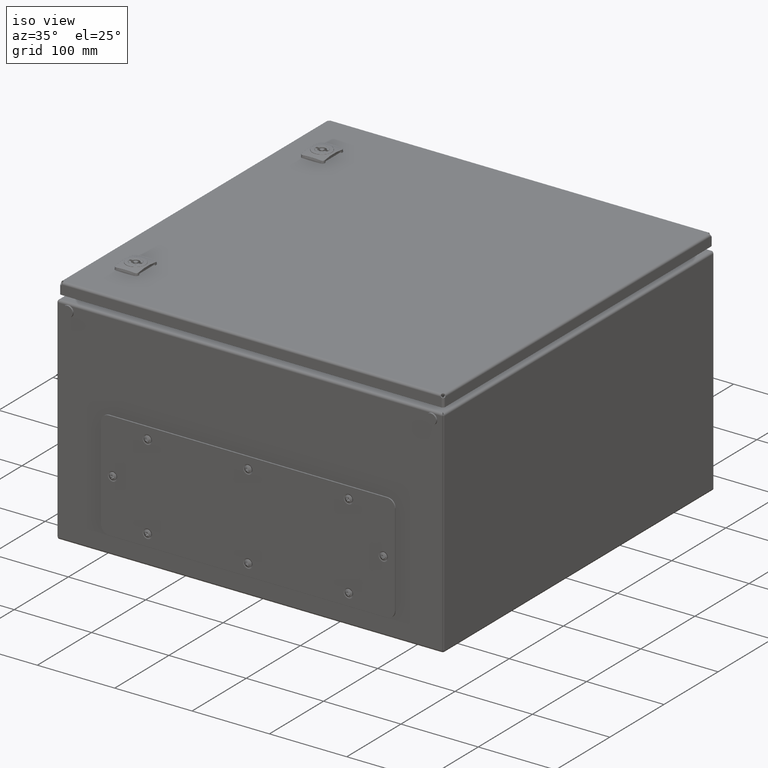
[diagram: clean part render]
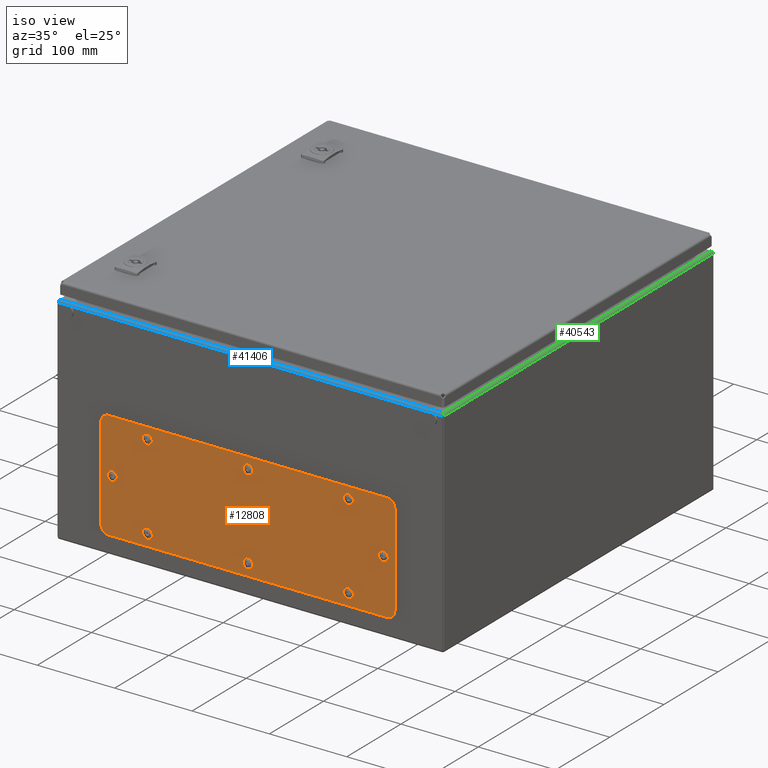
[diagram: same view with three faces highlighted in distinct colors, each labeled with its STEP entity id]
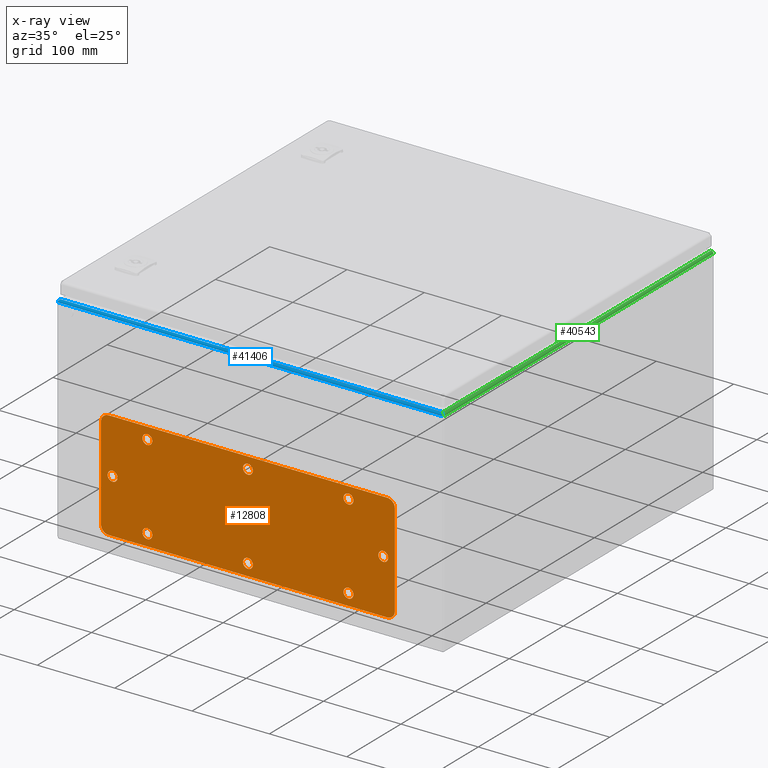
[diagram: x-ray of the same camera — body ghosted, the three highlighted faces saturated]
A machine part, iso view with three faces highlighted in distinct colors.
The next image is the same camera in x-ray (body ghosted, the three faces saturated) — at least one of them is partly hidden behind the body in this view.
Their STEP definitions:

[orange] entity #12808 — the highlighted planar face has unit normal (0, 1, -0).
#2485 = VERTEX_POINT ( 'NONE', #9225 ) ;
#9225 = CARTESIAN_POINT ( 'NONE',  ( -130.1241267230419100, 48.61766304406484800, 1.499999999907686500 ) ) ;
#9707 = DIRECTION ( 'NONE',  ( -0.01944479827874692100, -0.9998109320366021000, 0.0000000000000000000 ) ) ;
#9708 = DIRECTION ( 'NONE',  ( 0.0000000000000000000, 0.0000000000000000000, 1.000000000000000000 ) ) ;
#9709 = CARTESIAN_POINT ( 'NONE',  ( -130.0000000000000300, 54.99999999999995000, 1.499999999907686300 ) ) ;
#9710 = AXIS2_PLACEMENT_3D ( 'NONE', #9709, #9708, #9707 ) ;
#9711 = CIRCLE ( 'NONE', #9710, 6.383543879575676700 ) ;
#9712 = CARTESIAN_POINT ( 'NONE',  ( -129.8758732769581500, 61.38233695593505200, 1.499999999907686500 ) ) ;
#9750 = CARTESIAN_POINT ( 'NONE',  ( 0.1241267230418518200, -61.38233695593509500, 1.499999999907686500 ) ) ;
#9751 = CARTESIAN_POINT ( 'NONE',  ( -0.1241267230418952500, -48.61766304406489100, 1.499999999907686500 ) ) ;
#9842 = DIRECTION ( 'NONE',  ( -0.01944479827874607400, 0.9998109320366021000, 0.0000000000000000000 ) ) ;
#9843 = DIRECTION ( 'NONE',  ( 0.0000000000000000000, 0.0000000000000000000, -1.000000000000000000 ) ) ;
#9844 = CARTESIAN_POINT ( 'NONE',  ( -2.208518486838413600E-014, -54.99999999999999300, 1.499999999907686300 ) ) ;
#9845 = AXIS2_PLACEMENT_3D ( 'NONE', #9844, #9843, #9842 ) ;
#9846 = CIRCLE ( 'NONE', #9845, 6.383543879575676700 ) ;
#9861 = PLANE ( 'NONE',  #9928 ) ;
#9862 = FACE_OUTER_BOUND ( 'NONE', #12844, .T. ) ;
#9863 = FACE_BOUND ( 'NONE', #12832, .T. ) ;
#9864 = FACE_BOUND ( 'NONE', #12847, .T. ) ;
#9865 = FACE_BOUND ( 'NONE', #12833, .T. ) ;
#9866 = FACE_BOUND ( 'NONE', #12796, .T. ) ;
#9868 = FACE_BOUND ( 'NONE', #12835, .T. ) ;
#9869 = FACE_BOUND ( 'NONE', #12838, .T. ) ;
#9870 = FACE_BOUND ( 'NONE', #12804, .T. ) ;
#9871 = FACE_BOUND ( 'NONE', #12827, .T. ) ;
#9872 = DIRECTION ( 'NONE',  ( -0.01944479827874692100, -0.9998109320366021000, 0.0000000000000000000 ) ) ;
#9873 = DIRECTION ( 'NONE',  ( 0.0000000000000000000, 0.0000000000000000000, 1.000000000000000000 ) ) ;
#9874 = CARTESIAN_POINT ( 'NONE',  ( -175.0000000000000900, 7.052915043501256800E-014, 1.499999999907686300 ) ) ;
#9875 = AXIS2_PLACEMENT_3D ( 'NONE', #9874, #9873, #9872 ) ;
#9876 = CIRCLE ( 'NONE', #9875, 6.383543879575675800 ) ;
#9877 = DIRECTION ( 'NONE',  ( -0.01944479827874607400, -0.9998109320366021000, 0.0000000000000000000 ) ) ;
#9878 = DIRECTION ( 'NONE',  ( 0.0000000000000000000, 0.0000000000000000000, 1.000000000000000000 ) ) ;
#9879 = CARTESIAN_POINT ( 'NONE',  ( -2.208518486838413600E-014, 54.99999999999999300, 1.499999999907686300 ) ) ;
#9880 = AXIS2_PLACEMENT_3D ( 'NONE', #9879, #9878, #9877 ) ;
#9881 = CIRCLE ( 'NONE', #9880, 6.383543879575676700 ) ;
#9882 = DIRECTION ( 'NONE',  ( -0.01944479827874607400, 0.9998109320366021000, 0.0000000000000000000 ) ) ;
#9883 = DIRECTION ( 'NONE',  ( 0.0000000000000000000, 0.0000000000000000000, -1.000000000000000000 ) ) ;
#9884 = CARTESIAN_POINT ( 'NONE',  ( -2.208518486838413600E-014, -54.99999999999999300, 1.499999999907686300 ) ) ;
#9885 = AXIS2_PLACEMENT_3D ( 'NONE', #9884, #9883, #9882 ) ;
#9886 = CIRCLE ( 'NONE', #9885, 6.383543879575676700 ) ;
#9887 = DIRECTION ( 'NONE',  ( 0.01944479827874692100, 0.9998109320366021000, 0.0000000000000000000 ) ) ;
#9888 = DIRECTION ( 'NONE',  ( 0.0000000000000000000, 0.0000000000000000000, 1.000000000000000000 ) ) ;
#9889 = CARTESIAN_POINT ( 'NONE',  ( 130.0000000000000300, -54.99999999999995000, 1.499999999907686300 ) ) ;
#9890 = AXIS2_PLACEMENT_3D ( 'NONE', #9889, #9888, #9887 ) ;
#9891 = CIRCLE ( 'NONE', #9890, 6.383543879575676700 ) ;
#9898 = CARTESIAN_POINT ( 'NONE',  ( -130.0000000000000300, -54.99999999999995000, 1.499999999907686300 ) ) ;
#9899 = CIRCLE ( 'NONE', #9961, 6.383543879575676700 ) ;
#9900 = CARTESIAN_POINT ( 'NONE',  ( 180.0000000000000900, 69.99999999999995700, 1.500000000000000000 ) ) ;
#9912 = DIRECTION ( 'NONE',  ( 0.01944479827874692100, -0.9998109320366021000, 0.0000000000000000000 ) ) ;
#9913 = DIRECTION ( 'NONE',  ( 0.0000000000000000000, 0.0000000000000000000, -1.000000000000000000 ) ) ;
#9914 = CARTESIAN_POINT ( 'NONE',  ( 130.0000000000000300, 54.99999999999995000, 1.499999999907686300 ) ) ;
#9915 = AXIS2_PLACEMENT_3D ( 'NONE', #9914, #9913, #9912 ) ;
#9916 = CIRCLE ( 'NONE', #9915, 6.383543879575676700 ) ;
#9917 = DIRECTION ( 'NONE',  ( -1.000000000000000000, 1.156482317317871200E-016, 0.0000000000000000000 ) ) ;
#9918 = VECTOR ( 'NONE', #9917, 1000.000000000000000 ) ;
#9919 = CARTESIAN_POINT ( 'NONE',  ( -180.0000000000000300, 69.99999999999997200, 1.500000000000000000 ) ) ;
#9920 = LINE ( 'NONE', #9919, #9918 ) ;
#9925 = DIRECTION ( 'NONE',  ( -1.000000000000000000, 0.0000000000000000000, 0.0000000000000000000 ) ) ;
#9926 = DIRECTION ( 'NONE',  ( 0.0000000000000000000, 0.0000000000000000000, -1.000000000000000000 ) ) ;
#9927 = CARTESIAN_POINT ( 'NONE',  ( -180.0000000000000300, 60.00000000000000700, 1.500000000000000000 ) ) ;
#9928 = AXIS2_PLACEMENT_3D ( 'NONE', #9927, #9926, #9925 ) ;
#9939 = DIRECTION ( 'NONE',  ( 1.000000000000000000, 0.0000000000000000000, 0.0000000000000000000 ) ) ;
#9940 = DIRECTION ( 'NONE',  ( 0.0000000000000000000, 0.0000000000000000000, 1.000000000000000000 ) ) ;
#9941 = CARTESIAN_POINT ( 'NONE',  ( 180.0000000000000900, 59.99999999999996400, 1.500000000000000000 ) ) ;
#9942 = AXIS2_PLACEMENT_3D ( 'NONE', #9941, #9940, #9939 ) ;
#9943 = CIRCLE ( 'NONE', #9942, 9.999999999999980500 ) ;
#9954 = DIRECTION ( 'NONE',  ( 0.01944479827874692100, -0.9998109320366021000, 0.0000000000000000000 ) ) ;
#9955 = DIRECTION ( 'NONE',  ( 0.0000000000000000000, 0.0000000000000000000, -1.000000000000000000 ) ) ;
#9956 = CARTESIAN_POINT ( 'NONE',  ( 175.0000000000000900, 7.052915043501256800E-014, 1.499999999907686300 ) ) ;
#9957 = AXIS2_PLACEMENT_3D ( 'NONE', #9956, #9955, #9954 ) ;
#9958 = CIRCLE ( 'NONE', #9957, 6.383543879575675800 ) ;
#9959 = DIRECTION ( 'NONE',  ( -0.01944479827874692100, 0.9998109320366021000, 0.0000000000000000000 ) ) ;
#9960 = DIRECTION ( 'NONE',  ( 0.0000000000000000000, 0.0000000000000000000, -1.000000000000000000 ) ) ;
#9961 = AXIS2_PLACEMENT_3D ( 'NONE', #9898, #9960, #9959 ) ;
#9964 = DIRECTION ( 'NONE',  ( -0.01944479827874692100, -0.9998109320366021000, 0.0000000000000000000 ) ) ;
#9965 = DIRECTION ( 'NONE',  ( 0.0000000000000000000, 0.0000000000000000000, 1.000000000000000000 ) ) ;
#9966 = CARTESIAN_POINT ( 'NONE',  ( -130.0000000000000300, 54.99999999999995000, 1.499999999907686300 ) ) ;
#9967 = AXIS2_PLACEMENT_3D ( 'NONE', #9966, #9965, #9964 ) ;
#9968 = CIRCLE ( 'NONE', #9967, 6.383543879575676700 ) ;
#10332 = CARTESIAN_POINT ( 'NONE',  ( 130.1241267230419100, 48.61766304406484800, 1.499999999907686500 ) ) ;
#10340 = CARTESIAN_POINT ( 'NONE',  ( 129.8758732769581500, 61.38233695593505200, 1.499999999907686500 ) ) ;
#10347 = DIRECTION ( 'NONE',  ( 0.01944479827874692100, -0.9998109320366021000, 0.0000000000000000000 ) ) ;
#10348 = DIRECTION ( 'NONE',  ( 0.0000000000000000000, 0.0000000000000000000, -1.000000000000000000 ) ) ;
#10349 = CARTESIAN_POINT ( 'NONE',  ( 130.0000000000000300, 54.99999999999995000, 1.499999999907686300 ) ) ;
#10350 = AXIS2_PLACEMENT_3D ( 'NONE', #10349, #10348, #10347 ) ;
#10351 = CIRCLE ( 'NONE', #10350, 6.383543879575676700 ) ;
#11784 = VERTEX_POINT ( 'NONE', #9712 ) ;
#11905 = EDGE_CURVE ( 'NONE', #11784, #2485, #9711, .T. ) ;
#12690 = VERTEX_POINT ( 'NONE', #9751 ) ;
#12691 = VERTEX_POINT ( 'NONE', #9750 ) ;
#12782 = EDGE_CURVE ( 'NONE', #12690, #12691, #9846, .T. ) ;
#12795 = EDGE_CURVE ( 'NONE', #43035, #44875, #9891, .T. ) ;
#12796 = EDGE_LOOP ( 'NONE', ( #12851, #12821 ) ) ;
#12797 = EDGE_CURVE ( 'NONE', #12691, #12690, #9886, .T. ) ;
#12798 = ORIENTED_EDGE ( 'NONE', *, *, #13974, .T. ) ;
#12799 = ORIENTED_EDGE ( 'NONE', *, *, #12841, .T. ) ;
#12800 = EDGE_CURVE ( 'NONE', #31087, #13679, #9881, .T. ) ;
#12802 = ORIENTED_EDGE ( 'NONE', *, *, #12797, .T. ) ;
#12803 = ORIENTED_EDGE ( 'NONE', *, *, #12795, .F. ) ;
#12804 = EDGE_LOOP ( 'NONE', ( #12803, #12834 ) ) ;
#12805 = ORIENTED_EDGE ( 'NONE', *, *, #12807, .F. ) ;
#12806 = ORIENTED_EDGE ( 'NONE', *, *, #13687, .F. ) ;
#12807 = EDGE_CURVE ( 'NONE', #13686, #13683, #9876, .T. ) ;
#12808 = ADVANCED_FACE ( 'NONE', ( #9871, #9870, #9869, #9868, #9866, #9865, #9864, #9863, #9862 ), #9861, .F. ) ;
#12809 = ORIENTED_EDGE ( 'NONE', *, *, #13199, .T. ) ;
#12813 = ORIENTED_EDGE ( 'NONE', *, *, #13675, .F. ) ;
#12817 = EDGE_CURVE ( 'NONE', #12831, #13730, #9920, .T. ) ;
#12818 = EDGE_CURVE ( 'NONE', #13201, #13207, #9916, .T. ) ;
#12821 = ORIENTED_EDGE ( 'NONE', *, *, #12846, .T. ) ;
#12825 = ORIENTED_EDGE ( 'NONE', *, *, #12818, .T. ) ;
#12827 = EDGE_LOOP ( 'NONE', ( #12836, #12799 ) ) ;
#12831 = VERTEX_POINT ( 'NONE', #9900 ) ;
#12832 = EDGE_LOOP ( 'NONE', ( #12805, #12806 ) ) ;
#12833 = EDGE_LOOP ( 'NONE', ( #12848, #12813 ) ) ;
#12834 = ORIENTED_EDGE ( 'NONE', *, *, #43704, .F. ) ;
#12835 = EDGE_LOOP ( 'NONE', ( #12809, #12825 ) ) ;
#12836 = ORIENTED_EDGE ( 'NONE', *, *, #13666, .T. ) ;
#12838 = EDGE_LOOP ( 'NONE', ( #12839, #12802 ) ) ;
#12839 = ORIENTED_EDGE ( 'NONE', *, *, #12782, .T. ) ;
#12841 = EDGE_CURVE ( 'NONE', #13681, #13624, #9899, .T. ) ;
#12842 = ORIENTED_EDGE ( 'NONE', *, *, #13913, .T. ) ;
#12844 = EDGE_LOOP ( 'NONE', ( #12845, #12798, #12842, #13278, #13277, #13275, #13274, #13271 ) ) ;
#12845 = ORIENTED_EDGE ( 'NONE', *, *, #13732, .T. ) ;
#12846 = EDGE_CURVE ( 'NONE', #13996, #13992, #9958, .T. ) ;
#12847 = EDGE_LOOP ( 'NONE', ( #20991, #12849 ) ) ;
#12848 = ORIENTED_EDGE ( 'NONE', *, *, #12800, .F. ) ;
#12849 = ORIENTED_EDGE ( 'NONE', *, *, #11905, .F. ) ;
#12851 = ORIENTED_EDGE ( 'NONE', *, *, #13993, .T. ) ;
#12854 = EDGE_CURVE ( 'NONE', #13953, #12831, #9943, .T. ) ;
#12917 = EDGE_CURVE ( 'NONE', #2485, #11784, #9968, .T. ) ;
#13199 = EDGE_CURVE ( 'NONE', #13207, #13201, #10351, .T. ) ;
#13201 = VERTEX_POINT ( 'NONE', #10340 ) ;
#13207 = VERTEX_POINT ( 'NONE', #10332 ) ;
#13271 = ORIENTED_EDGE ( 'NONE', *, *, #12817, .T. ) ;
#13274 = ORIENTED_EDGE ( 'NONE', *, *, #12854, .T. ) ;
#13275 = ORIENTED_EDGE ( 'NONE', *, *, #13957, .T. ) ;
#13277 = ORIENTED_EDGE ( 'NONE', *, *, #13936, .T. ) ;
#13278 = ORIENTED_EDGE ( 'NONE', *, *, #13886, .T. ) ;
#13624 = VERTEX_POINT ( 'NONE', #14163 ) ;
#13666 = EDGE_CURVE ( 'NONE', #13624, #13681, #14275, .T. ) ;
#13675 = EDGE_CURVE ( 'NONE', #13679, #31087, #14319, .T. ) ;
#13679 = VERTEX_POINT ( 'NONE', #14310 ) ;
#13681 = VERTEX_POINT ( 'NONE', #14304 ) ;
#13683 = VERTEX_POINT ( 'NONE', #14298 ) ;
#13686 = VERTEX_POINT ( 'NONE', #14295 ) ;
#13687 = EDGE_CURVE ( 'NONE', #13683, #13686, #14359, .T. ) ;
#13730 = VERTEX_POINT ( 'NONE', #14421 ) ;
#13732 = EDGE_CURVE ( 'NONE', #13730, #13740, #14420, .T. ) ;
#13740 = VERTEX_POINT ( 'NONE', #14400 ) ;
#13747 = VERTEX_POINT ( 'NONE', #14397 ) ;
#13886 = EDGE_CURVE ( 'NONE', #13747, #13894, #14538, .T. ) ;
#13894 = VERTEX_POINT ( 'NONE', #14530 ) ;
#13913 = EDGE_CURVE ( 'NONE', #13968, #13747, #14577, .T. ) ;
#13936 = EDGE_CURVE ( 'NONE', #13894, #13938, #14612, .T. ) ;
#13938 = VERTEX_POINT ( 'NONE', #14607 ) ;
#13953 = VERTEX_POINT ( 'NONE', #14659 ) ;
#13957 = EDGE_CURVE ( 'NONE', #13938, #13953, #14653, .T. ) ;
#13968 = VERTEX_POINT ( 'NONE', #14637 ) ;
#13974 = EDGE_CURVE ( 'NONE', #13740, #13968, #14629, .T. ) ;
#13992 = VERTEX_POINT ( 'NONE', #14672 ) ;
#13993 = EDGE_CURVE ( 'NONE', #13992, #13996, #14671, .T. ) ;
#13996 = VERTEX_POINT ( 'NONE', #14661 ) ;
#14163 = CARTESIAN_POINT ( 'NONE',  ( -130.1241267230419100, -48.61766304406484800, 1.499999999907686500 ) ) ;
#14272 = DIRECTION ( 'NONE',  ( -0.01944479827874692100, 0.9998109320366021000, 0.0000000000000000000 ) ) ;
#14273 = DIRECTION ( 'NONE',  ( 0.0000000000000000000, 0.0000000000000000000, -1.000000000000000000 ) ) ;
#14274 = AXIS2_PLACEMENT_3D ( 'NONE', #14282, #14273, #14272 ) ;
#14275 = CIRCLE ( 'NONE', #14274, 6.383543879575676700 ) ;
#14282 = CARTESIAN_POINT ( 'NONE',  ( -130.0000000000000300, -54.99999999999995000, 1.499999999907686300 ) ) ;
#14295 = CARTESIAN_POINT ( 'NONE',  ( -175.1241267230419400, -6.382336955935032900, 1.499999999907686500 ) ) ;
#14298 = CARTESIAN_POINT ( 'NONE',  ( -174.8758732769582000, 6.382336955935173300, 1.499999999907686500 ) ) ;
#14304 = CARTESIAN_POINT ( 'NONE',  ( -129.8758732769581500, -61.38233695593505200, 1.499999999907686500 ) ) ;
#14310 = CARTESIAN_POINT ( 'NONE',  ( 0.1241267230418502800, 61.38233695593509500, 1.499999999907686500 ) ) ;
#14316 = DIRECTION ( 'NONE',  ( -0.01944479827874607400, -0.9998109320366021000, 0.0000000000000000000 ) ) ;
#14317 = DIRECTION ( 'NONE',  ( 0.0000000000000000000, 0.0000000000000000000, 1.000000000000000000 ) ) ;
#14318 = AXIS2_PLACEMENT_3D ( 'NONE', #14323, #14317, #14316 ) ;
#14319 = CIRCLE ( 'NONE', #14318, 6.383543879575676700 ) ;
#14323 = CARTESIAN_POINT ( 'NONE',  ( -2.208518486838413600E-014, 54.99999999999999300, 1.499999999907686300 ) ) ;
#14354 = DIRECTION ( 'NONE',  ( -0.01944479827874692100, -0.9998109320366021000, 0.0000000000000000000 ) ) ;
#14355 = DIRECTION ( 'NONE',  ( 0.0000000000000000000, 0.0000000000000000000, 1.000000000000000000 ) ) ;
#14357 = CARTESIAN_POINT ( 'NONE',  ( -175.0000000000000900, 7.052915043501256800E-014, 1.499999999907686300 ) ) ;
#14358 = AXIS2_PLACEMENT_3D ( 'NONE', #14357, #14355, #14354 ) ;
#14359 = CIRCLE ( 'NONE', #14358, 6.383543879575675800 ) ;
#14397 = CARTESIAN_POINT ( 'NONE',  ( -180.0000000000000300, -69.99999999999998600, 1.500000000000000000 ) ) ;
#14400 = CARTESIAN_POINT ( 'NONE',  ( -190.0000000000000900, 60.00000000000002100, 1.500000000000000000 ) ) ;
#14416 = DIRECTION ( 'NONE',  ( -1.000000000000000000, 0.0000000000000000000, 0.0000000000000000000 ) ) ;
#14417 = DIRECTION ( 'NONE',  ( 0.0000000000000000000, 0.0000000000000000000, 1.000000000000000000 ) ) ;
#14418 = CARTESIAN_POINT ( 'NONE',  ( -180.0000000000000300, 60.00000000000000700, 1.500000000000000000 ) ) ;
#14419 = AXIS2_PLACEMENT_3D ( 'NONE', #14418, #14417, #14416 ) ;
#14420 = CIRCLE ( 'NONE', #14419, 10.00000000000000900 ) ;
#14421 = CARTESIAN_POINT ( 'NONE',  ( -180.0000000000000300, 69.99999999999997200, 1.500000000000000000 ) ) ;
#14530 = CARTESIAN_POINT ( 'NONE',  ( 180.0000000000000900, -69.99999999999992900, 1.500000000000000000 ) ) ;
#14535 = DIRECTION ( 'NONE',  ( 1.000000000000000000, 1.156482317317871200E-016, 0.0000000000000000000 ) ) ;
#14536 = VECTOR ( 'NONE', #14535, 1000.000000000000000 ) ;
#14537 = CARTESIAN_POINT ( 'NONE',  ( -180.0000000000000300, -69.99999999999997200, 1.500000000000000000 ) ) ;
#14538 = LINE ( 'NONE', #14537, #14536 ) ;
#14572 = DIRECTION ( 'NONE',  ( 1.000000000000000000, 0.0000000000000000000, 0.0000000000000000000 ) ) ;
#14574 = DIRECTION ( 'NONE',  ( 0.0000000000000000000, 0.0000000000000000000, 1.000000000000000000 ) ) ;
#14575 = CARTESIAN_POINT ( 'NONE',  ( -180.0000000000000300, -60.00000000000000700, 1.500000000000000000 ) ) ;
#14576 = AXIS2_PLACEMENT_3D ( 'NONE', #14575, #14574, #14572 ) ;
#14577 = CIRCLE ( 'NONE', #14576, 9.999999999999980500 ) ;
#14607 = CARTESIAN_POINT ( 'NONE',  ( 190.0000000000000600, -60.00000000000006400, 1.500000000000000000 ) ) ;
#14608 = DIRECTION ( 'NONE',  ( 1.000000000000000000, 0.0000000000000000000, 0.0000000000000000000 ) ) ;
#14609 = DIRECTION ( 'NONE',  ( 0.0000000000000000000, 0.0000000000000000000, 1.000000000000000000 ) ) ;
#14610 = CARTESIAN_POINT ( 'NONE',  ( 180.0000000000000900, -59.99999999999996400, 1.500000000000000000 ) ) ;
#14611 = AXIS2_PLACEMENT_3D ( 'NONE', #14610, #14609, #14608 ) ;
#14612 = CIRCLE ( 'NONE', #14611, 9.999999999999980500 ) ;
#14628 = CARTESIAN_POINT ( 'NONE',  ( -190.0000000000000900, 60.00000000000002100, 1.500000000000000000 ) ) ;
#14629 = LINE ( 'NONE', #14628, #14692 ) ;
#14637 = CARTESIAN_POINT ( 'NONE',  ( -190.0000000000000300, -60.00000000000011400, 1.500000000000000000 ) ) ;
#14650 = DIRECTION ( 'NONE',  ( 0.0000000000000000000, 1.000000000000000000, 0.0000000000000000000 ) ) ;
#14651 = VECTOR ( 'NONE', #14650, 1000.000000000000000 ) ;
#14652 = CARTESIAN_POINT ( 'NONE',  ( 190.0000000000000900, 60.00000000000006400, 1.500000000000000000 ) ) ;
#14653 = LINE ( 'NONE', #14652, #14651 ) ;
#14659 = CARTESIAN_POINT ( 'NONE',  ( 190.0000000000000900, 60.00000000000006400, 1.500000000000000000 ) ) ;
#14661 = CARTESIAN_POINT ( 'NONE',  ( 174.8758732769582000, 6.382336955935173300, 1.499999999907686500 ) ) ;
#14667 = DIRECTION ( 'NONE',  ( 0.01944479827874692100, -0.9998109320366021000, 0.0000000000000000000 ) ) ;
#14668 = DIRECTION ( 'NONE',  ( 0.0000000000000000000, 0.0000000000000000000, -1.000000000000000000 ) ) ;
#14669 = CARTESIAN_POINT ( 'NONE',  ( 175.0000000000000900, 7.052915043501256800E-014, 1.499999999907686300 ) ) ;
#14670 = AXIS2_PLACEMENT_3D ( 'NONE', #14669, #14668, #14667 ) ;
#14671 = CIRCLE ( 'NONE', #14670, 6.383543879575675800 ) ;
#14672 = CARTESIAN_POINT ( 'NONE',  ( 175.1241267230419400, -6.382336955935032900, 1.499999999907686500 ) ) ;
#14691 = DIRECTION ( 'NONE',  ( 4.625929269271481000E-016, -1.000000000000000000, 0.0000000000000000000 ) ) ;
#14692 = VECTOR ( 'NONE', #14691, 1000.000000000000000 ) ;
#15117 = CARTESIAN_POINT ( 'NONE',  ( -0.1241267230418952500, 48.61766304406489100, 1.499999999907686500 ) ) ;
#20991 = ORIENTED_EDGE ( 'NONE', *, *, #12917, .F. ) ;
#26341 = CARTESIAN_POINT ( 'NONE',  ( 130.1241267230419100, -48.61766304406484800, 1.499999999907686500 ) ) ;
#26974 = DIRECTION ( 'NONE',  ( 0.01944479827874692100, 0.9998109320366021000, 0.0000000000000000000 ) ) ;
#26975 = DIRECTION ( 'NONE',  ( 0.0000000000000000000, 0.0000000000000000000, 1.000000000000000000 ) ) ;
#26976 = CARTESIAN_POINT ( 'NONE',  ( 130.0000000000000300, -54.99999999999995000, 1.499999999907686300 ) ) ;
#26977 = AXIS2_PLACEMENT_3D ( 'NONE', #26976, #26975, #26974 ) ;
#26978 = CIRCLE ( 'NONE', #26977, 6.383543879575676700 ) ;
#29976 = CARTESIAN_POINT ( 'NONE',  ( 129.8758732769581500, -61.38233695593505200, 1.499999999907686500 ) ) ;
#31087 = VERTEX_POINT ( 'NONE', #15117 ) ;
#43035 = VERTEX_POINT ( 'NONE', #26341 ) ;
#43704 = EDGE_CURVE ( 'NONE', #44875, #43035, #26978, .T. ) ;
#44875 = VERTEX_POINT ( 'NONE', #29976 ) ;

[blue] entity #41406 — the highlighted cylindrical surface (edge-blend (fillet) strip) has radius 3 mm, axis along (1, -0, 0).
#22478 = CARTESIAN_POINT ( 'NONE',  ( -248.4744118324781500, -250.0000000000018200, 277.0000000000000000 ) ) ;
#22586 = DIRECTION ( 'NONE',  ( -1.000000000000000000, 2.233855500551174400E-016, 0.0000000000000000000 ) ) ;
#22587 = VECTOR ( 'NONE', #22586, 1000.000000000000000 ) ;
#22588 = CARTESIAN_POINT ( 'NONE',  ( 2733.492221825341400, -250.0000000000012800, 277.0000000000000000 ) ) ;
#22589 = LINE ( 'NONE', #22588, #22587 ) ;
#22591 = CARTESIAN_POINT ( 'NONE',  ( 248.4744118324283000, -249.9999999999983200, 277.0000000000000000 ) ) ;
#24523 = CARTESIAN_POINT ( 'NONE',  ( -247.4992915886199700, -247.7737059495608800, 279.8985134581374200 ) ) ;
#24534 = DIRECTION ( 'NONE',  ( 0.0000000000000000000, 1.000000000000000000, 0.0000000000000000000 ) ) ;
#24535 = DIRECTION ( 'NONE',  ( 1.000000000000000000, -2.233855500551174400E-016, 0.0000000000000000000 ) ) ;
#24536 = CARTESIAN_POINT ( 'NONE',  ( -496.9601426090015400, -247.0000000000005400, 277.0000000000000000 ) ) ;
#24537 = AXIS2_PLACEMENT_3D ( 'NONE', #24536, #24535, #24534 ) ;
#24538 = CYLINDRICAL_SURFACE ( 'NONE', #24537, 3.000000193898094900 ) ;
#24539 = FACE_OUTER_BOUND ( 'NONE', #41407, .T. ) ;
#24566 = CARTESIAN_POINT ( 'NONE',  ( 248.4744118324283000, -249.9999999999983200, 277.0000000000000000 ) ) ;
#24567 = CARTESIAN_POINT ( 'NONE',  ( 248.4374843751527400, -250.0000001938987900, 277.3040206799005300 ) ) ;
#24568 = CARTESIAN_POINT ( 'NONE',  ( 248.4000577630234500, -249.9539211484466800, 277.5853635510443400 ) ) ;
#24569 = CARTESIAN_POINT ( 'NONE',  ( 248.3239785565255300, -249.8082067519169100, 278.0873249176856300 ) ) ;
#24570 = CARTESIAN_POINT ( 'NONE',  ( 248.2853639075788700, -249.7087623523588600, 278.3078829343367600 ) ) ;
#24571 = CARTESIAN_POINT ( 'NONE',  ( 248.2069845182902000, -249.4901345649659600, 278.6873592088964500 ) ) ;
#24572 = CARTESIAN_POINT ( 'NONE',  ( 248.1672197779481900, -249.3709932479744400, 278.8465055482951700 ) ) ;
#24573 = CARTESIAN_POINT ( 'NONE',  ( 248.0865402058687400, -249.1379612485980900, 279.1119454115382700 ) ) ;
#24574 = CARTESIAN_POINT ( 'NONE',  ( 248.0456253741311900, -249.0240308135722100, 279.2184051286586700 ) ) ;
#24575 = CARTESIAN_POINT ( 'NONE',  ( 248.0028389380262000, -248.9176945845493100, 279.3070470828101900 ) ) ;
#24576 = CARTESIAN_POINT ( 'NONE',  ( 248.0007384355707000, -248.9124791775694800, 279.3113750559881500 ) ) ;
#24577 = CARTESIAN_POINT ( 'NONE',  ( 247.9973242103711200, -248.9040137223306900, 279.3183535104158800 ) ) ;
#24578 = CARTESIAN_POINT ( 'NONE',  ( 247.9956113764133900, -248.8997717713733100, 279.3218308424419500 ) ) ;
#24579 = CARTESIAN_POINT ( 'NONE',  ( 247.9904557104655700, -248.8870184539835900, 279.3322270131865300 ) ) ;
#24580 = CARTESIAN_POINT ( 'NONE',  ( 247.9869957144012200, -248.8784796228143300, 279.3391100261693500 ) ) ;
#24581 = CARTESIAN_POINT ( 'NONE',  ( 247.9765470699116500, -248.8527549225238400, 279.3596146588599800 ) ) ;
#24582 = CARTESIAN_POINT ( 'NONE',  ( 247.9694897651892200, -248.8354608432313700, 279.3730918658280900 ) ) ;
#24583 = CARTESIAN_POINT ( 'NONE',  ( 247.9480432258344500, -248.7831591080778000, 279.4129372449124300 ) ) ;
#24584 = CARTESIAN_POINT ( 'NONE',  ( 247.9333793660143200, -248.7477319046365700, 279.4387190700653000 ) ) ;
#24585 = CARTESIAN_POINT ( 'NONE',  ( 247.8882892858019900, -248.6398807646731400, 279.5136542403880100 ) ) ;
#24586 = CARTESIAN_POINT ( 'NONE',  ( 247.8567645646586200, -248.5658866201374100, 279.5603955591813000 ) ) ;
#24587 = CARTESIAN_POINT ( 'NONE',  ( 247.7577963982231500, -248.3385198991184400, 279.6905141322604900 ) ) ;
#24596 = CARTESIAN_POINT ( 'NONE',  ( 247.6859589499256100, -248.1797562722887600, 279.7637576480297000 ) ) ;
#24597 = CARTESIAN_POINT ( 'NONE',  ( 247.4528705930114300, -247.6894011754015100, 279.9403141541972100 ) ) ;
#24598 = CARTESIAN_POINT ( 'NONE',  ( 247.2740422563997000, -247.3437642784016900, 280.0000001939060300 ) ) ;
#24599 = CARTESIAN_POINT ( 'NONE',  ( 247.0717820690391900, -246.9999999999661800, 280.0000000000322300 ) ) ;
#24600 = B_SPLINE_CURVE_WITH_KNOTS ( 'NONE', 3,
 ( #24599, #24598, #24597, #24596, #24587, #24586, #24585, #24584, #24583, #24582, #24581, #24580, #24579, #24578, #24577, #24576, #24575, #24574, #24573, #24572, #24571, #24570, #24569, #24568, #24567, #24566 ),
 .UNSPECIFIED., .F., .F.,
 ( 4, 2, 2, 2, 2, 2, 2, 2, 2, 2, 2, 2, 4 ),
 ( 0.0000000000000000000, 0.2500000000000000000, 0.3750000000000000000, 0.4375000000000000000, 0.4687500000000000000, 0.4843750000000000000, 0.4921875000000000000, 0.4960937500000000000, 0.5000000000000000000, 0.6250000000000000000, 0.7500000000000000000, 0.8750000000000000000, 1.000000000000000000 ),
 .UNSPECIFIED. ) ;
#24608 = CARTESIAN_POINT ( 'NONE',  ( -248.2528084186001000, -249.5733472944752700, 278.5481119535879200 ) ) ;
#24609 = CARTESIAN_POINT ( 'NONE',  ( -248.2801190435728800, -249.6525455314863700, 278.4124569016746600 ) ) ;
#24610 = CARTESIAN_POINT ( 'NONE',  ( -248.3625432996643100, -249.8731612372185400, 277.9322393456379800 ) ) ;
#24611 = CARTESIAN_POINT ( 'NONE',  ( -248.4178713784027900, -250.0000001938986700, 277.5115010698838200 ) ) ;
#24612 = CARTESIAN_POINT ( 'NONE',  ( -248.4744118324781500, -250.0000000000018200, 277.0000000000000000 ) ) ;
#24613 = B_SPLINE_CURVE_WITH_KNOTS ( 'NONE', 3,
 ( #24612, #24611, #24610, #24609, #24608, #24642, #24641, #24640, #24639, #24638, #24637, #24636, #24635, #24634 ),
 .UNSPECIFIED., .F., .F.,
 ( 4, 2, 2, 2, 2, 2, 4 ),
 ( 0.0000000000000000000, 0.2500000000000000000, 0.3750000000000000000, 0.4375000000000000000, 0.5000000000000000000, 0.7500000000000000000, 1.000000000000000000 ),
 .UNSPECIFIED. ) ;
#24634 = CARTESIAN_POINT ( 'NONE',  ( -247.4992915886199700, -247.7737059495608800, 279.8985134581374200 ) ) ;
#24635 = CARTESIAN_POINT ( 'NONE',  ( -247.6627434641137600, -248.1759232282775800, 279.7911485073938100 ) ) ;
#24636 = CARTESIAN_POINT ( 'NONE',  ( -247.7975980691395500, -248.4961830220190100, 279.6178312454165400 ) ) ;
#24637 = CARTESIAN_POINT ( 'NONE',  ( -248.0127387074383600, -248.9889193063296800, 279.2662312454307900 ) ) ;
#24638 = CARTESIAN_POINT ( 'NONE',  ( -248.0925875140462200, -249.1624017963346800, 279.0881022120268500 ) ) ;
#24639 = CARTESIAN_POINT ( 'NONE',  ( -248.1577466316291000, -249.3163512865865500, 278.9070336471467600 ) ) ;
#24640 = CARTESIAN_POINT ( 'NONE',  ( -248.1715740836767500, -249.3511975685567000, 278.8642202336084800 ) ) ;
#24641 = CARTESIAN_POINT ( 'NONE',  ( -248.1985564545342100, -249.4223254881895900, 278.7708151555285100 ) ) ;
#24642 = CARTESIAN_POINT ( 'NONE',  ( -248.2120886717273700, -249.4594997139852000, 278.7191724053034200 ) ) ;
#24676 = CARTESIAN_POINT ( 'NONE',  ( -247.0011046352552700, -246.9999999999660900, 280.0000000000357500 ) ) ;
#24677 = CARTESIAN_POINT ( 'NONE',  ( -247.1671829986244400, -247.2608752999338200, 280.0000001939041000 ) ) ;
#24678 = CARTESIAN_POINT ( 'NONE',  ( -247.3332145298468300, -247.5216578024229400, 279.9657933546880600 ) ) ;
#24679 = CARTESIAN_POINT ( 'NONE',  ( -247.4992915886199700, -247.7737059495608800, 279.8985134581374200 ) ) ;
#24680 = CARTESIAN_POINT ( 'NONE',  ( -247.0011046352552700, -246.9999999999660900, 280.0000000000357500 ) ) ;
#24681 = B_SPLINE_CURVE_WITH_KNOTS ( 'NONE', 3,
 ( #24679, #24678, #24677, #24676 ),
 .UNSPECIFIED., .F., .F.,
 ( 4, 4 ),
 ( 2.618434803024079800E-006, 1.000000000000000000 ),
 .UNSPECIFIED. ) ;
#24749 = CARTESIAN_POINT ( 'NONE',  ( 247.0717820690391900, -246.9999999999661800, 280.0000000000322300 ) ) ;
#24767 = DIRECTION ( 'NONE',  ( -1.000000000000000000, -3.969459698176088100E-017, -3.969459698176016600E-017 ) ) ;
#24768 = VECTOR ( 'NONE', #24767, 1000.000000000000000 ) ;
#24769 = CARTESIAN_POINT ( 'NONE',  ( 248.4992928932245800, -246.9999999999661800, 280.0000000000345600 ) ) ;
#24771 = LINE ( 'NONE', #24769, #24768 ) ;
#39410 = VERTEX_POINT ( 'NONE', #22478 ) ;
#39539 = VERTEX_POINT ( 'NONE', #22591 ) ;
#39542 = EDGE_CURVE ( 'NONE', #39539, #39410, #22589, .T. ) ;
#41328 = VERTEX_POINT ( 'NONE', #24523 ) ;
#41406 = ADVANCED_FACE ( 'NONE', ( #24539 ), #24538, .T. ) ;
#41407 = EDGE_LOOP ( 'NONE', ( #41409, #41412, #41520, #41523, #41525 ) ) ;
#41409 = ORIENTED_EDGE ( 'NONE', *, *, #39542, .F. ) ;
#41412 = ORIENTED_EDGE ( 'NONE', *, *, #41415, .F. ) ;
#41415 = EDGE_CURVE ( 'NONE', #41464, #39539, #24600, .T. ) ;
#41425 = EDGE_CURVE ( 'NONE', #39410, #41328, #24613, .T. ) ;
#41440 = EDGE_CURVE ( 'NONE', #41328, #41442, #24681, .T. ) ;
#41442 = VERTEX_POINT ( 'NONE', #24680 ) ;
#41464 = VERTEX_POINT ( 'NONE', #24749 ) ;
#41520 = ORIENTED_EDGE ( 'NONE', *, *, #41521, .T. ) ;
#41521 = EDGE_CURVE ( 'NONE', #41464, #41442, #24771, .T. ) ;
#41523 = ORIENTED_EDGE ( 'NONE', *, *, #41440, .F. ) ;
#41525 = ORIENTED_EDGE ( 'NONE', *, *, #41425, .F. ) ;

[green] entity #40543 — the highlighted cylindrical surface (edge-blend (fillet) strip) has radius 3 mm, axis along (0, 1, 0).
#22827 = DIRECTION ( 'NONE',  ( 0.0000000000000000000, 1.000000000000000000, 0.0000000000000000000 ) ) ;
#22828 = VECTOR ( 'NONE', #22827, 1000.000000000000000 ) ;
#22829 = CARTESIAN_POINT ( 'NONE',  ( 249.9999999999999400, -2733.492221825098600, 277.0000000000000000 ) ) ;
#22830 = LINE ( 'NONE', #22829, #22828 ) ;
#22831 = CARTESIAN_POINT ( 'NONE',  ( 249.9999999999981000, 248.4744118324677200, 277.0000000000000000 ) ) ;
#22858 = CARTESIAN_POINT ( 'NONE',  ( 250.0000000000017600, -248.4744118324379100, 277.0000000000000000 ) ) ;
#23437 = B_SPLINE_CURVE_WITH_KNOTS ( 'NONE', 3,
 ( #23487, #23486, #23485, #23484, #23483, #23482, #23481, #23480, #23479, #23478, #23477, #23476, #23475, #23474, #23473, #23472, #23471, #23470, #23469, #23468, #23467, #23466, #23465, #23464, #23463, #23462 ),
 .UNSPECIFIED., .F., .F.,
 ( 4, 2, 2, 2, 2, 2, 2, 2, 2, 2, 2, 2, 4 ),
 ( 0.0000000000000000000, 0.2500000000000000000, 0.3750000000000000000, 0.4375000000000000000, 0.4687500000000000000, 0.4843750000000000000, 0.4921875000000000000, 0.4960937500000000000, 0.5000000000000000000, 0.6250000000000000000, 0.7500000000000000000, 0.8750000000000000000, 1.000000000000000000 ),
 .UNSPECIFIED. ) ;
#23462 = CARTESIAN_POINT ( 'NONE',  ( 249.9999999999981000, 248.4744118324677200, 277.0000000000000000 ) ) ;
#23463 = CARTESIAN_POINT ( 'NONE',  ( 250.0000001938980200, 248.4374843751984100, 277.3040206798484100 ) ) ;
#23464 = CARTESIAN_POINT ( 'NONE',  ( 249.9539211484616000, 248.4000577630733600, 277.5853635509501500 ) ) ;
#23465 = CARTESIAN_POINT ( 'NONE',  ( 249.8082067519721900, 248.3239785565798700, 278.0873249175326700 ) ) ;
#23466 = CARTESIAN_POINT ( 'NONE',  ( 249.7087623524387000, 248.2853639076334700, 278.3078829341672500 ) ) ;
#23467 = CARTESIAN_POINT ( 'NONE',  ( 249.4901345650870900, 248.2069845183409600, 278.6873592087145000 ) ) ;
#23468 = CARTESIAN_POINT ( 'NONE',  ( 249.3709932481122800, 248.1672197779949200, 278.8465055481173100 ) ) ;
#23469 = CARTESIAN_POINT ( 'NONE',  ( 249.1379612487523600, 248.0865402059033900, 279.1119454113815000 ) ) ;
#23470 = CARTESIAN_POINT ( 'NONE',  ( 249.0240308137262300, 248.0456253741579600, 279.2184051285187800 ) ) ;
#23471 = CARTESIAN_POINT ( 'NONE',  ( 248.9176945846925500, 248.0028389380425700, 279.3070470826904700 ) ) ;
#23472 = CARTESIAN_POINT ( 'NONE',  ( 248.9124790575880300, 248.0007383873631000, 279.3113751554456000 ) ) ;
#23473 = CARTESIAN_POINT ( 'NONE',  ( 248.9040134828271700, 247.9973241145065100, 279.3183537072966900 ) ) ;
#23474 = CARTESIAN_POINT ( 'NONE',  ( 248.8997714723128100, 247.9956112569091100, 279.3218310873181700 ) ) ;
#23475 = CARTESIAN_POINT ( 'NONE',  ( 248.8870179768917400, 247.9904555206104000, 279.3322273999173100 ) ) ;
#23476 = CARTESIAN_POINT ( 'NONE',  ( 248.8784790278876600, 247.9869954784021500, 279.3391105046274000 ) ) ;
#23477 = CARTESIAN_POINT ( 'NONE',  ( 248.8527539768676300, 247.9765466977496000, 279.3596154041123300 ) ) ;
#23478 = CARTESIAN_POINT ( 'NONE',  ( 248.8354596674563500, 247.9694893052778200, 279.3730927777584700 ) ) ;
#23479 = CARTESIAN_POINT ( 'NONE',  ( 248.7831572547356100, 247.9480425117521300, 279.4129386244891300 ) ) ;
#23480 = CARTESIAN_POINT ( 'NONE',  ( 248.7477296166561900, 247.9333784945879100, 279.4387207182021500 ) ) ;
#23481 = CARTESIAN_POINT ( 'NONE',  ( 248.6398772367691900, 247.8882879786543500, 279.5136565746862500 ) ) ;
#23482 = CARTESIAN_POINT ( 'NONE',  ( 248.5658823513022400, 247.8567630154438700, 279.5603981912792600 ) ) ;
#23483 = CARTESIAN_POINT ( 'NONE',  ( 248.3385137542541700, 247.7577942680476300, 279.6905172706397600 ) ) ;
#23484 = CARTESIAN_POINT ( 'NONE',  ( 248.1797493456861000, 247.6859566260972900, 279.7637606047561600 ) ) ;
#23485 = CARTESIAN_POINT ( 'NONE',  ( 247.6893938062815400, 247.4528682691888000, 279.9403158819914700 ) ) ;
#23486 = CARTESIAN_POINT ( 'NONE',  ( 247.3437592241198800, 247.2740406825790800, 280.0000001938980700 ) ) ;
#23487 = CARTESIAN_POINT ( 'NONE',  ( 247.0000000001396600, 247.0717820690784100, 279.9999999998584600 ) ) ;
#23497 = CARTESIAN_POINT ( 'NONE',  ( 247.0000000001396600, -247.0011046352147200, 279.9999999998621500 ) ) ;
#23498 = CARTESIAN_POINT ( 'NONE',  ( 247.2608753000915800, -247.1671829985840200, 280.0000001938980700 ) ) ;
#23499 = CARTESIAN_POINT ( 'NONE',  ( 247.5216578026694100, -247.3332145298066100, 279.9657933546524200 ) ) ;
#23500 = CARTESIAN_POINT ( 'NONE',  ( 247.7737099097501200, -247.4992936977730300, 279.8985124010332000 ) ) ;
#23501 = B_SPLINE_CURVE_WITH_KNOTS ( 'NONE', 3,
 ( #23500, #23499, #23498, #23497 ),
 .UNSPECIFIED., .F., .F.,
 ( 4, 4 ),
 ( 0.0000000000000000000, 1.000000000000000000 ),
 .UNSPECIFIED. ) ;
#23502 = CARTESIAN_POINT ( 'NONE',  ( 247.0000000001396600, -247.0011046352147200, 279.9999999998621500 ) ) ;
#23558 = CARTESIAN_POINT ( 'NONE',  ( 247.0000000001396600, 247.0717820690784100, 279.9999999998584600 ) ) ;
#23595 = CARTESIAN_POINT ( 'NONE',  ( 249.8731612373254300, -248.3625432997086200, 277.9322393452955600 ) ) ;
#23596 = CARTESIAN_POINT ( 'NONE',  ( 250.0000001938980200, -248.4178713784202700, 277.5115010696515600 ) ) ;
#23629 = CARTESIAN_POINT ( 'NONE',  ( 247.7737099097501200, -247.4992936977730300, 279.8985124010332000 ) ) ;
#23630 = B_SPLINE_CURVE_WITH_KNOTS ( 'NONE', 3,
 ( #23631, #23596, #23595, #23666, #23665, #23664, #23663, #23662, #23661, #23660, #23659, #23658, #23657, #23656 ),
 .UNSPECIFIED., .F., .F.,
 ( 4, 2, 2, 2, 2, 2, 4 ),
 ( 0.0000000000000000000, 0.2499998974464606200, 0.3749998461696909500, 0.4374998205313060900, 0.4999997948929212300, 0.7499996923393819100, 0.9999995897858424700 ),
 .UNSPECIFIED. ) ;
#23631 = CARTESIAN_POINT ( 'NONE',  ( 250.0000000000017600, -248.4744118324379100, 277.0000000000000000 ) ) ;
#23656 = CARTESIAN_POINT ( 'NONE',  ( 247.7737099097501200, -247.4992936977730300, 279.8985124010332000 ) ) ;
#23657 = CARTESIAN_POINT ( 'NONE',  ( 248.1759232283631000, -247.6627434640048500, 279.7911485073223600 ) ) ;
#23658 = CARTESIAN_POINT ( 'NONE',  ( 248.4961830219944800, -247.7975980689967600, 279.6178312454270600 ) ) ;
#23659 = CARTESIAN_POINT ( 'NONE',  ( 248.9889193062670100, -248.0127387072912500, 279.2662312454815500 ) ) ;
#23660 = CARTESIAN_POINT ( 'NONE',  ( 249.1624017963395700, -248.0925875139296600, 279.0881022120373100 ) ) ;
#23661 = CARTESIAN_POINT ( 'NONE',  ( 249.3163512867253900, -248.1577466315916900, 278.9070336469784500 ) ) ;
#23662 = CARTESIAN_POINT ( 'NONE',  ( 249.3511975687135000, -248.1715740836523600, 278.8642202334108300 ) ) ;
#23663 = CARTESIAN_POINT ( 'NONE',  ( 249.4223254883739600, -248.1985564545331600, 278.7708151552763500 ) ) ;
#23664 = CARTESIAN_POINT ( 'NONE',  ( 249.4594997141777200, -248.2120886717361300, 278.7191724050277300 ) ) ;
#23665 = CARTESIAN_POINT ( 'NONE',  ( 249.5733472946768400, -248.2528084186326700, 278.5481119532548700 ) ) ;
#23666 = CARTESIAN_POINT ( 'NONE',  ( 249.6525455316730700, -248.2801190436139500, 278.4124569013209200 ) ) ;
#23691 = CYLINDRICAL_SURFACE ( 'NONE', #23757, 3.000000193898066900 ) ;
#23692 = FACE_OUTER_BOUND ( 'NONE', #40548, .T. ) ;
#23749 = DIRECTION ( 'NONE',  ( 0.0000000000000000000, 1.000000000000000000, 0.0000000000000000000 ) ) ;
#23750 = VECTOR ( 'NONE', #23749, 1000.000000000000000 ) ;
#23751 = CARTESIAN_POINT ( 'NONE',  ( 247.0000000001396600, -248.4992928931970100, 279.9999999998602800 ) ) ;
#23752 = LINE ( 'NONE', #23751, #23750 ) ;
#23754 = DIRECTION ( 'NONE',  ( 0.0000000000000000000, 0.0000000000000000000, 1.000000000000000000 ) ) ;
#23755 = DIRECTION ( 'NONE',  ( 0.0000000000000000000, 1.000000000000000000, 0.0000000000000000000 ) ) ;
#23756 = CARTESIAN_POINT ( 'NONE',  ( 246.9999999999999400, -496.9601426089603800, 277.0000000000000000 ) ) ;
#23757 = AXIS2_PLACEMENT_3D ( 'NONE', #23756, #23755, #23754 ) ;
#39846 = VERTEX_POINT ( 'NONE', #22831 ) ;
#39851 = EDGE_CURVE ( 'NONE', #39885, #39846, #22830, .T. ) ;
#39885 = VERTEX_POINT ( 'NONE', #22858 ) ;
#40407 = EDGE_CURVE ( 'NONE', #40455, #39846, #23437, .T. ) ;
#40434 = EDGE_CURVE ( 'NONE', #40467, #40437, #23501, .T. ) ;
#40437 = VERTEX_POINT ( 'NONE', #23502 ) ;
#40455 = VERTEX_POINT ( 'NONE', #23558 ) ;
#40464 = EDGE_CURVE ( 'NONE', #39885, #40467, #23630, .T. ) ;
#40467 = VERTEX_POINT ( 'NONE', #23629 ) ;
#40543 = ADVANCED_FACE ( 'NONE', ( #23692 ), #23691, .T. ) ;
#40548 = EDGE_LOOP ( 'NONE', ( #40550, #40552, #40557, #40558, #40559 ) ) ;
#40550 = ORIENTED_EDGE ( 'NONE', *, *, #40407, .F. ) ;
#40552 = ORIENTED_EDGE ( 'NONE', *, *, #40555, .F. ) ;
#40555 = EDGE_CURVE ( 'NONE', #40437, #40455, #23752, .T. ) ;
#40557 = ORIENTED_EDGE ( 'NONE', *, *, #40434, .F. ) ;
#40558 = ORIENTED_EDGE ( 'NONE', *, *, #40464, .F. ) ;
#40559 = ORIENTED_EDGE ( 'NONE', *, *, #39851, .T. ) ;